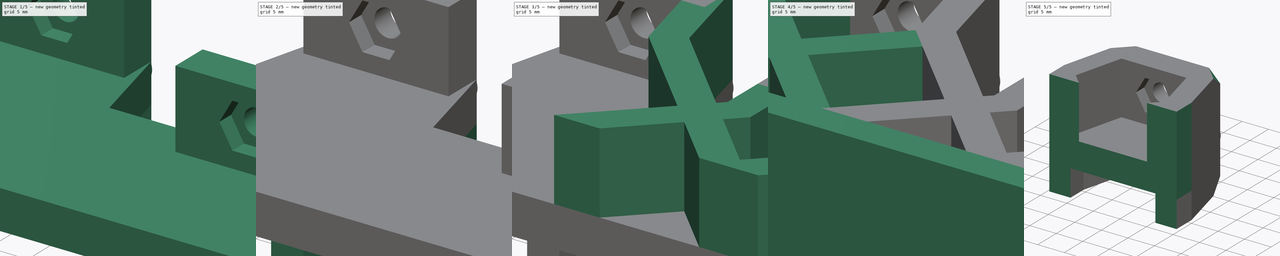
[diagram: build sequence overview — one tinted view per stage of 5, left to right]
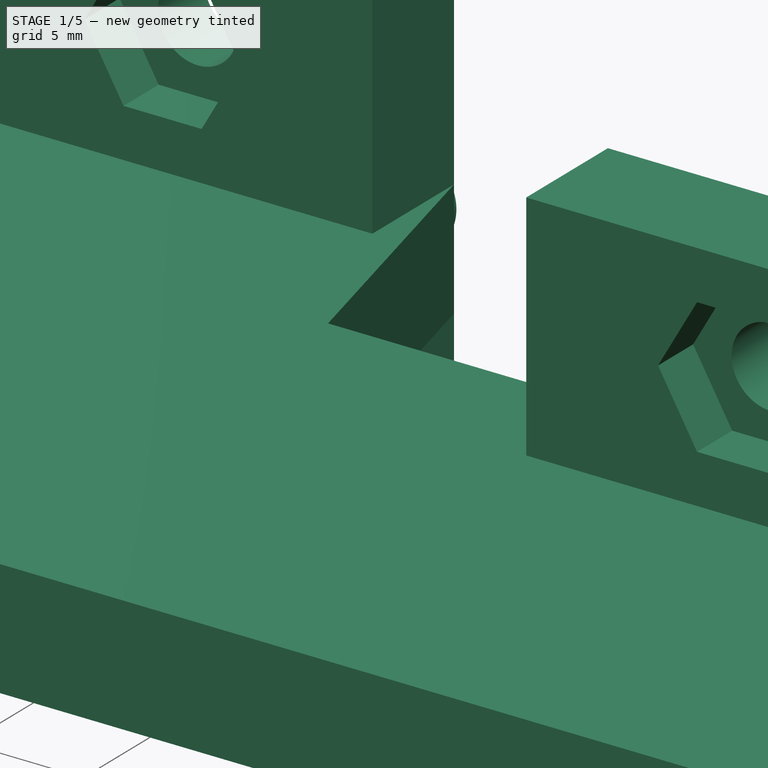
[diagram: stage 1 of 5 — iso view after this stage's code; geometry added in this stage tinted green]
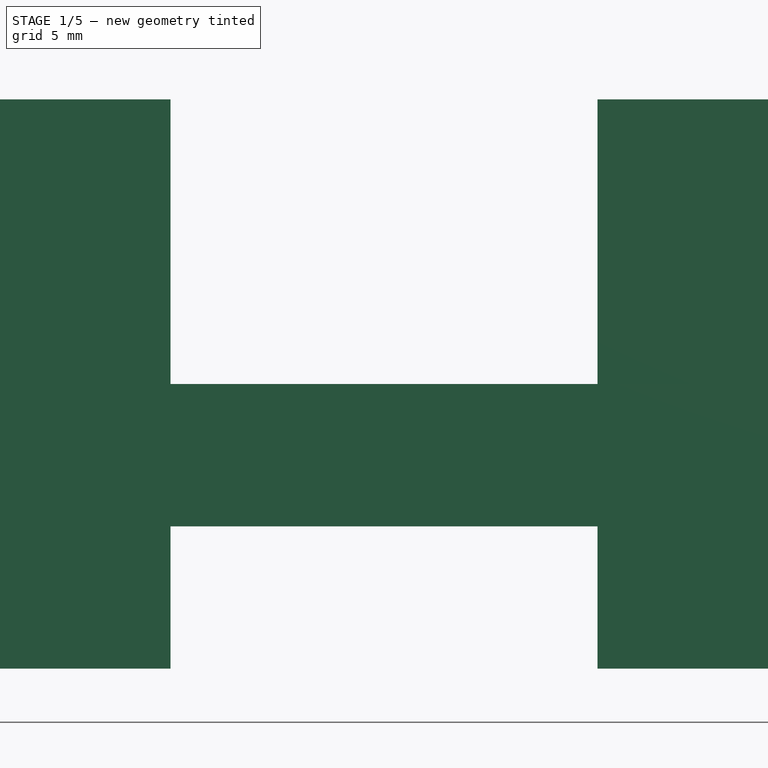
[diagram: stage 1 of 5 — front view after this stage's code; geometry added in this stage tinted green]
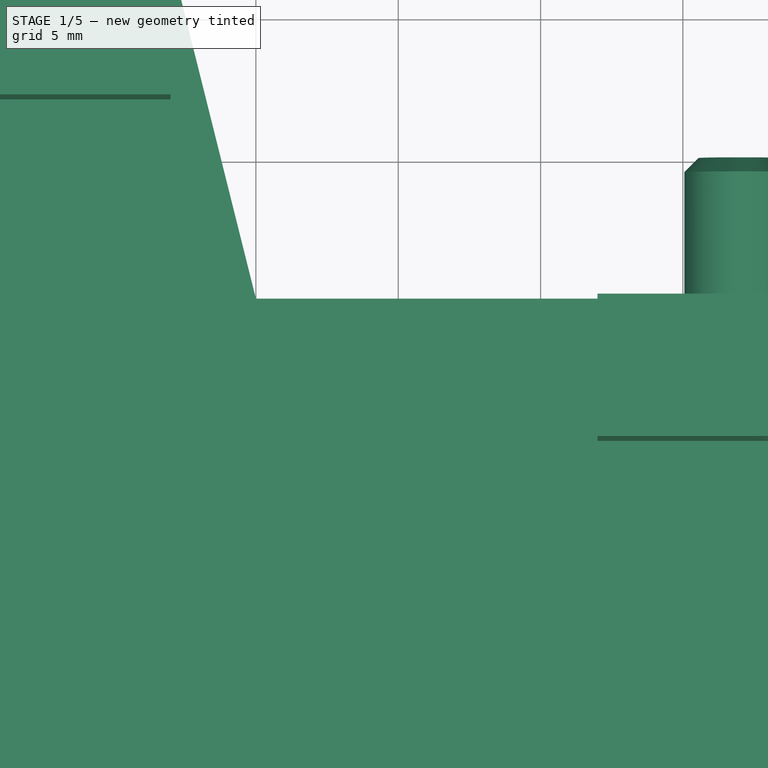
[diagram: stage 1 of 5 — top view after this stage's code; geometry added in this stage tinted green]
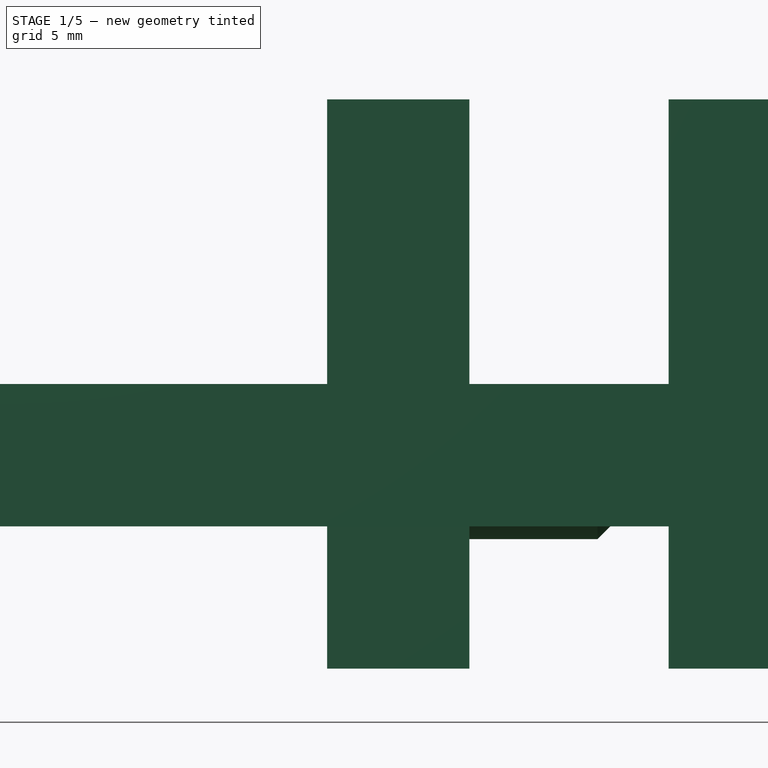
[diagram: stage 1 of 5 — right view after this stage's code; geometry added in this stage tinted green]
FCSTD DOCUMENT  (FreeCAD 0.19R)
Label: hori_stem_for_clamp_partial_test
License: All rights reserved
LicenseURL: http://en.wikipedia.org/wiki/All_rights_reserved
objects: Sketcher::SketchObject×18, PartDesign::Pad×14, PartDesign::LinearPattern×7, PartDesign::Mirrored×7, PartDesign::Plane×5, PartDesign::Pocket×4, PartDesign::Hole×2, PartDesign::Chamfer×2, PartDesign::MultiTransform×2, PartDesign::Fillet×2, PartDesign::Line×1, PartDesign::Body×1
note: 89 computed .brp shape members not serialized (recipe doc carries the construction recipe); baked Part::Feature solids carry a one-line shape summary decoded from their .brp

FEATURE [Sketcher::SketchObject] Sketch  label="bar_base_sk"
  FullyConstrained = true
  MapMode = 5
  Support = -> [XY_Plane]
  sketch-geometry (12):
    g0: LineSegment StartX=-9 StartY=-23 StartZ=0 EndX=108 EndY=-23 EndZ=0
    g1: LineSegment StartX=-9 StartY=0 StartZ=0 EndX=21 EndY=0 EndZ=0
    g2: LineSegment StartX=21 StartY=0 StartZ=0 EndX=24 EndY=12 EndZ=0
    g3: LineSegment StartX=24 StartY=12 StartZ=0 EndX=42 EndY=12 EndZ=0
    g4: LineSegment StartX=42 StartY=12 StartZ=0 EndX=45 EndY=0 EndZ=0
    g5: LineSegment StartX=45 StartY=0 StartZ=0 EndX=87 EndY=0 EndZ=0
    g6: LineSegment StartX=87 StartY=0 StartZ=0 EndX=90 EndY=12 EndZ=0
    g7: LineSegment StartX=90 StartY=12 StartZ=0 EndX=108 EndY=12 EndZ=0
    g8: LineSegment StartX=-9 StartY=0 StartZ=0 EndX=-9 EndY=-23 EndZ=0
    g9: LineSegment StartX=108 StartY=12 StartZ=0 EndX=108 EndY=-23 EndZ=0
    g10: GeomPoint X=9 Y=0 Z=0
    g11: LineSegment StartX=-9 StartY=0 StartZ=0 EndX=9 EndY=0 EndZ=0
  constraints (33):
    c: Horizontal(g0)
    c: PointOnObject(g1,g-1)
    c: Coincident(g1,g2)
    c: Coincident(g2,g3)
    c: Horizontal(g3)
    c: Coincident(g3,g4)
    c: PointOnObject(g4,g-1)
    c: Coincident(g4,g5)
    c: PointOnObject(g5,g-1)
    c: Coincident(g5,g6)
    c: Coincident(g6,g7)
    c: Horizontal(g7)
    c: Coincident(g8,g1)
    c: Coincident(g8,g0)
    c: Vertical(g8)
    c: Coincident(g9,g7)
    c: Coincident(g9,g0)
    c: Vertical(g9)
    c: DistanceY(g2,g2) = 12
    c: Horizontal(g3,g6)
    c: DistanceX(g3,g3) = 18
    c: DistanceX(g3,g7) = 66
    c: Equal(g7,g3)
    c: PointOnObject(g10,g1)
    c: Coincident(g11,g1)
    c: Coincident(g11,g10)
    c: Equal(g11,g3)
    c: Symmetric(g10,g1,g-2)
    c: DistanceX(g10,g3) = 33
    c: DistanceX(g1,g4) = 24
    c: Equal(g2,g4)
    c: Parallel(g6,g2)
    c: DistanceY(g9,g9) = 35
FEATURE [PartDesign::Pad] Pad  label="bar_base"
  Direction = (1,1,1)
  Length = 5
  Length2 = 100
  Profile = -> Sketch
  Type = 0
FEATURE [PartDesign::Line] DatumLine  label="connector_movement_vector"
  AttacherType = Attacher::AttachEngineLine
  Length = 20
  MapMode = 29
  Placement = pos=(-1.05109,2.89051,0) rot=(0.710454,-0.497622,-0.497622;1.90618rad)
  ResizeMode = 0
  Support = -> [Pad]
FEATURE [Sketcher::SketchObject] Sketch001  label="connector_base_sk"
  ExternalGeometry = -> [Pad]
  FullyConstrained = true
  MapMode = 5
  Placement = pos=(0,0,0) rot=(0,0.707107,0.707107;3.14159rad)
  Support = -> [Pad]
  sketch-geometry (8):
    g0: LineSegment StartX=-9 StartY=5 StartZ=0 EndX=9 EndY=5 EndZ=0
    g1: LineSegment StartX=9 StartY=5 StartZ=0 EndX=9 EndY=15 EndZ=0
    g2: LineSegment StartX=9 StartY=15 StartZ=0 EndX=-9 EndY=15 EndZ=0
    g3: LineSegment StartX=-9 StartY=15 StartZ=0 EndX=-9 EndY=5 EndZ=0
    g4: LineSegment StartX=-9 StartY=0 StartZ=0 EndX=9 EndY=0 EndZ=0
    g5: LineSegment StartX=9 StartY=0 StartZ=0 EndX=9 EndY=-5 EndZ=0
    g6: LineSegment StartX=9 StartY=-5 StartZ=0 EndX=-9 EndY=-5 EndZ=0
    g7: LineSegment StartX=-9 StartY=-5 StartZ=0 EndX=-9 EndY=0 EndZ=0
  constraints (23):
    c: Coincident(g0,g1)
    c: Coincident(g1,g2)
    c: Coincident(g2,g3)
    c: Coincident(g3,g0)
    c: Horizontal(g0)
    c: Vertical(g1)
    c: Vertical(g3)
    c: PointOnObject(g0,g-4)
    c: Symmetric(g2,g1,g-2)
    c: Equal(g2,g-3)
    c: DistanceY(g3,g3) = 10
    c: Coincident(g4,g5)
    c: Coincident(g5,g6)
    c: Coincident(g6,g7)
    c: Coincident(g7,g4)
    c: Horizontal(g4)
    c: Horizontal(g6)
    c: Vertical(g5)
    c: Vertical(g7)
    c: PointOnObject(g4,g-1)
    c: Vertical(g4,g0)
    c: Vertical(g4,g0)
    c: DistanceY(g7,g7) = 5
FEATURE [PartDesign::Pad] Pad001  label="connector_base"
  BaseFeature = -> Pad
  Direction = (1,1,1)
  Length = 5
  Length2 = 100
  Profile = -> Sketch001
  Reversed = true
  Type = 0
FEATURE [Sketcher::SketchObject] Sketch002  label="M3_hole_sk"
  ExternalGeometry = -> [Pad001]
  FullyConstrained = true
  MapMode = 5
  Placement = pos=(0,0,0) rot=(0,0.707107,0.707107;3.14159rad)
  Support = -> [Pad001]
  sketch-geometry (1):
    g0: Circle CenterX=0 CenterY=10 CenterZ=0 NormalX=0 NormalY=0 NormalZ=1 AngleXU=0 Radius=1
  constraints (3):
    c: PointOnObject(g0,g-2)
    c: Radius(g0) = 1
    c: Distance(g0,g-3) = 5
FEATURE [PartDesign::Hole] Hole  label="M3_hole"
  BaseFeature = -> Pad001
  Depth = 25
  DepthType = 1
  Diameter = 3.4
  DrillForDepth = false
  DrillPoint = 1
  DrillPointAngle = 118
  HoleCutCountersinkAngle = 90
  HoleCutCustomValues = false
  HoleCutDepth = 0
  HoleCutDiameter = 6.1
  HoleCutType = 0
  ModelActualThread = false
  Profile = -> Sketch002
  Tapered = false
  TaperedAngle = 90
  ThreadAngle = 0
  ThreadClass = 0
  ThreadCutOffInner = 0
  ThreadCutOffOuter = 0
  ThreadDirection = 0
  ThreadFit = 0
  ThreadPitch = 0
  ThreadSize = 9
  ThreadType = 1
  Threaded = false
FEATURE [Sketcher::SketchObject] Sketch003  label="M3_hex_sk"
  ExternalGeometry = -> [Hole]
  FullyConstrained = true
  MapMode = 5
  Placement = pos=(0,-5,1.1e-15) rot=(1,0,0;1.5708rad)
  Support = -> [Hole]
  sketch-geometry (7):
    g0: LineSegment StartX=3.34863 StartY=10 StartZ=0 EndX=1.67432 EndY=12.9 EndZ=0
    g1: LineSegment StartX=1.67432 StartY=12.9 StartZ=0 EndX=-1.67432 EndY=12.9 EndZ=0
    g2: LineSegment StartX=-1.67432 StartY=12.9 StartZ=0 EndX=-3.34863 EndY=10 EndZ=0
    g3: LineSegment StartX=-3.34863 StartY=10 StartZ=0 EndX=-1.67432 EndY=7.1 EndZ=0
    g4: LineSegment StartX=-1.67432 StartY=7.1 StartZ=0 EndX=1.67432 EndY=7.1 EndZ=0
    g5: LineSegment StartX=1.67432 StartY=7.1 StartZ=0 EndX=3.34863 EndY=10 EndZ=0
    g6: Circle CenterX=0 CenterY=10 CenterZ=0 NormalX=0 NormalY=0 NormalZ=1 AngleXU=0 Radius=3.34863
  constraints (16):
    c: Coincident(g0,g1)
    c: Coincident(g1,g2)
    c: Coincident(g2,g3)
    c: Coincident(g3,g4)
    c: Coincident(g4,g5)
    c: Coincident(g5,g0)
    c: Equal(g0, g1-g5) x5
    c: PointOnObject(g0,g6)
    c: PointOnObject(g1,g6)
    c: PointOnObject(g2,g6)
    c: PointOnObject(g3,g6)
    c: PointOnObject(g4,g6)
    c: PointOnObject(g5,g6)
    c: Coincident(g6,g-3)
    c: Horizontal(g6,g0)
    c: DistanceY(g3,g1) = 5.8
FEATURE [PartDesign::Pocket] Pocket  label="M3_hex"
  BaseFeature = -> Hole
  Length = 2.15
  Length2 = 100
  Profile = -> Sketch003
  Type = 0
FEATURE [Sketcher::SketchObject] Sketch004  label="dual_dowel_pin_sk"
  ExternalGeometry = -> [Pocket]
  FullyConstrained = true
  MapMode = 5
  Placement = pos=(0,0,0) rot=(0,0.707107,0.707107;3.14159rad)
  Support = -> [Pocket]
  sketch-geometry (2):
    g0: Circle CenterX=-4 CenterY=1.5 CenterZ=0 NormalX=0 NormalY=0 NormalZ=1 AngleXU=0 Radius=1.95
    g1: Circle CenterX=4 CenterY=1.5 CenterZ=0 NormalX=0 NormalY=0 NormalZ=1 AngleXU=0 Radius=1.95
  constraints (5):
    c: Symmetric(g1,g0,g-2)
    c: Equal(g1,g0)
    c: Radius(g0) = 1.95
    c: DistanceX(g0,g-1) = 4
    c: DistanceY(g0,g-3) = 8.5
FEATURE [PartDesign::Pad] Pad002  label="dual_dowel_pin"
  BaseFeature = -> Pocket
  Direction = (1,1,1)
  Length = 5
  Length2 = 100
  Profile = -> Sketch004
  Type = 0
FEATURE [PartDesign::Chamfer] Chamfer  label="dowel_pin_chamfer"
  Angle = 45
  Base = -> Pad002 [Edge52,Edge50]
  BaseFeature = -> Pad002
  ChamferType = 0
  FlipDirection = false
  Size = 0.5
  Size2 = 1
  SupportTransform = false
FEATURE [PartDesign::LinearPattern] LinearPattern
  Direction = -> DatumLine
  Length = 35.1141
  Occurrences = 2
  Reversed = true
  expr: Length = sqrt(33 ^ 2 + 12 ^ 2)
FEATURE [PartDesign::LinearPattern] LinearPattern001
  Direction = -> X_Axis
  Length = 66
  Occurrences = 2
FEATURE [PartDesign::MultiTransform] MultiTransform  label="quad_connector"
  BaseFeature = -> Chamfer
  Originals = -> [Pad001,Hole,Pocket,Pad002,Chamfer]
  Transformations = -> [LinearPattern,LinearPattern001]
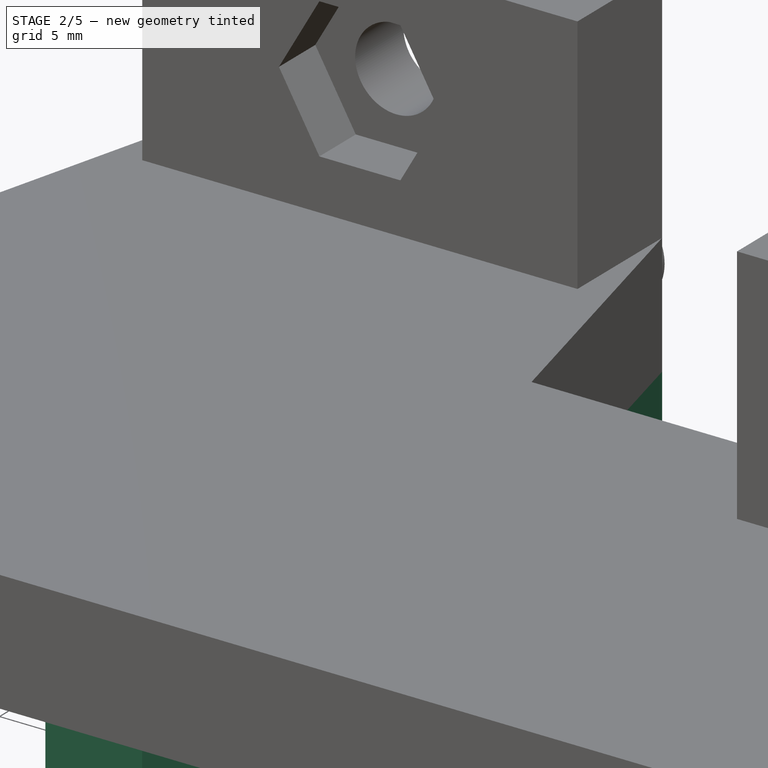
[diagram: stage 2 of 5 — iso view after this stage's code; geometry added in this stage tinted green]
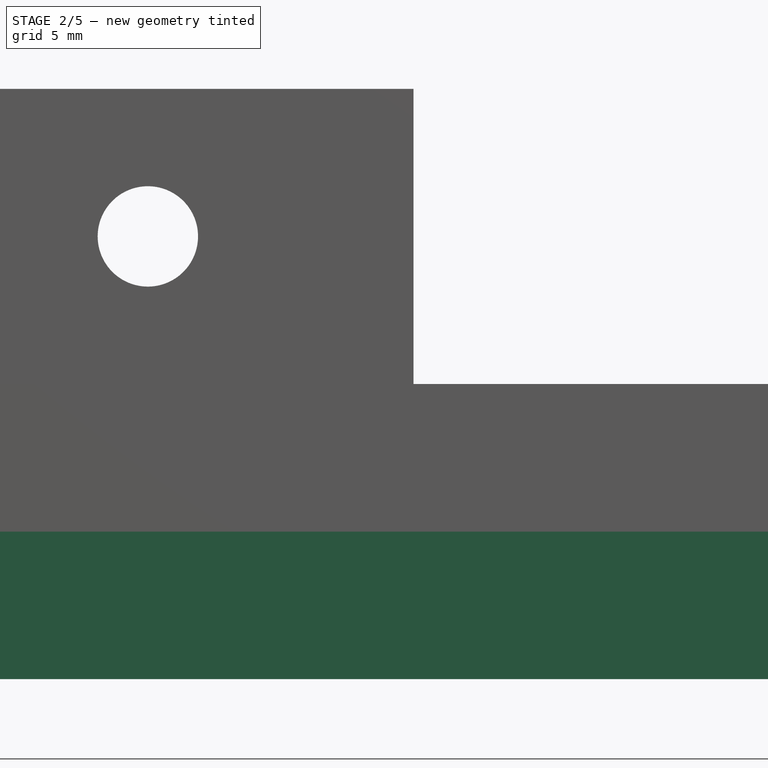
[diagram: stage 2 of 5 — front view after this stage's code; geometry added in this stage tinted green]
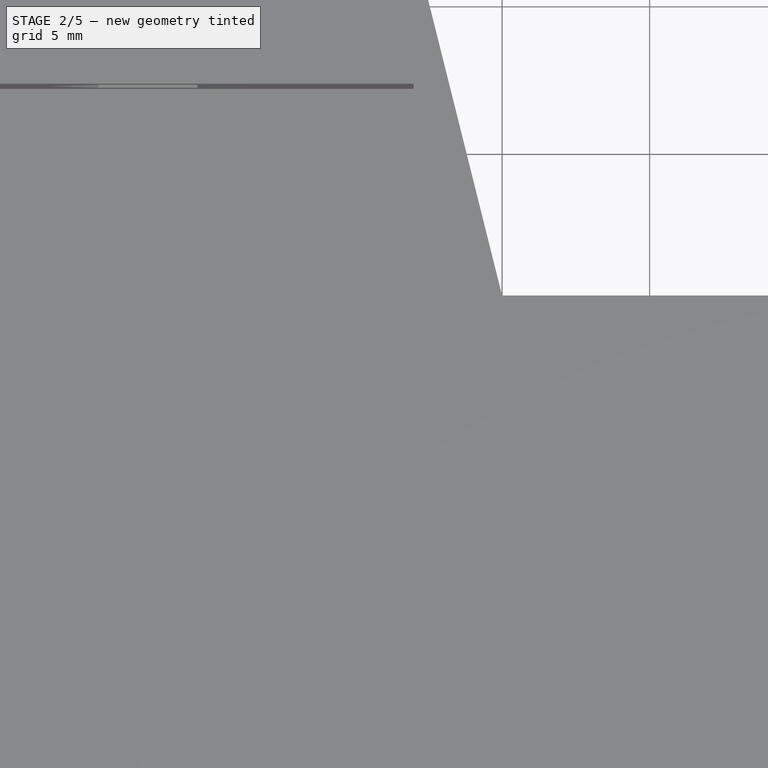
[diagram: stage 2 of 5 — top view after this stage's code; geometry added in this stage tinted green]
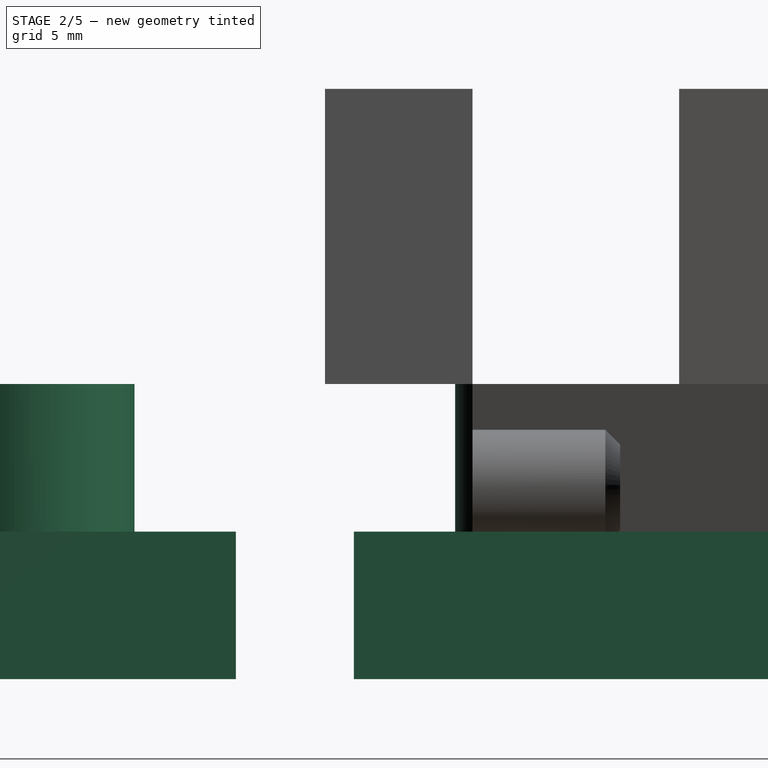
[diagram: stage 2 of 5 — right view after this stage's code; geometry added in this stage tinted green]
FEATURE [Sketcher::SketchObject] Sketch005  label="side_extender_sk"
  ExternalGeometry = -> [MultiTransform]
  FullyConstrained = true
  MapMode = 5
  Placement = pos=(0,0,5) rot=(0,0,1;0rad)
  Support = -> [MultiTransform]
  sketch-geometry (23):
    g0: LineSegment StartX=108 StartY=-23 StartZ=0 EndX=112 EndY=-23 EndZ=0
    g1: LineSegment StartX=112 StartY=-23 StartZ=0 EndX=128.079 EndY=-6.92102 EndZ=0
    g2: LineSegment StartX=128.079 StartY=-6.92102 StartZ=0 EndX=128.079 EndY=12 EndZ=0
    g3: LineSegment StartX=128.079 StartY=12 StartZ=0 EndX=108 EndY=12 EndZ=0
    g4: LineSegment StartX=108 StartY=12 StartZ=0 EndX=108 EndY=-23 EndZ=0
    g5: LineSegment StartX=-28.158 StartY=12 StartZ=0 EndX=-46.079 EndY=12 EndZ=0
    g6: LineSegment StartX=-46.079 StartY=12 StartZ=0 EndX=-46.079 EndY=-5.92102 EndZ=0
    g7: LineSegment StartX=-46.079 StartY=-5.92102 StartZ=0 EndX=-29 EndY=-23 EndZ=0
    g8: LineSegment StartX=-29 StartY=-23 StartZ=0 EndX=-9 EndY=-23 EndZ=0
    g9: LineSegment StartX=-9 StartY=-23 StartZ=0 EndX=-9 EndY=0 EndZ=0
    g10: Circle CenterX=101.079 CenterY=-15 CenterZ=0 NormalX=0 NormalY=0 NormalZ=1 AngleXU=0 Radius=5.5
    g11: LineSegment StartX=101.079 StartY=-15 StartZ=0 EndX=137 EndY=20.921 EndZ=0
    g12: GeomPoint X=99 Y=12 Z=0
    g13: Circle CenterX=119.039 CenterY=2.96051 CenterZ=0 NormalX=0 NormalY=0 NormalZ=1 AngleXU=0 Radius=5.5
    g14: LineSegment StartX=-55 StartY=20.921 StartZ=0 EndX=-19.079 EndY=-15 EndZ=0
    g15: Circle CenterX=-19.079 CenterY=-15 CenterZ=0 NormalX=0 NormalY=0 NormalZ=1 AngleXU=0 Radius=5.5
    g16: Circle CenterX=-37.0395 CenterY=2.96051 CenterZ=0 NormalX=0 NormalY=0 NormalZ=1 AngleXU=0 Radius=5.5
    g17: Circle CenterX=-37.0395 CenterY=2.96051 CenterZ=0 NormalX=0 NormalY=0 NormalZ=1 AngleXU=0 Radius=1
    g18: Circle CenterX=-19.079 CenterY=-15 CenterZ=0 NormalX=0 NormalY=0 NormalZ=1 AngleXU=0 Radius=1
    g19: Circle CenterX=119.039 CenterY=2.96051 CenterZ=0 NormalX=0 NormalY=0 NormalZ=1 AngleXU=0 Radius=1
    g20: Circle CenterX=101.079 CenterY=-15 CenterZ=0 NormalX=0 NormalY=0 NormalZ=1 AngleXU=0 Radius=1
    g21: LineSegment StartX=-9 StartY=0 StartZ=0 EndX=-16.158 EndY=0 EndZ=0
    g22: LineSegment StartX=-28.158 StartY=12 StartZ=0 EndX=-16.158 EndY=0 EndZ=0
  constraints (57):
    c: Coincident(g-3,g0)
    c: Horizontal(g0)
    c: Coincident(g0,g1)
    c: Coincident(g1,g2)
    c: Vertical(g2)
    c: Coincident(g3,g-4)
    c: Horizontal(g3)
    c: Coincident(g3,g4)
    c: Coincident(g4,g0)
    c: Coincident(g6,g7)
    c: Coincident(g7,g8)
    c: Coincident(g8,g-5)
    c: Horizontal(g8)
    c: Coincident(g8,g9)
    c: Coincident(g11,g10)
    c: Radius(g10) = 5.5
    c: Distance(g11) = 50.8
    c: Angle(g-1,g11) = 0.785398
    c: Symmetric(g-7,g3,g12)
    c: DistanceY(g10,g12) = 27
    c: DistanceX(g12,g11) = 38
    c: Symmetric(g10,g11,g13)
    c: Equal(g13,g10)
    c: Parallel(g1,g11)
    c: Horizontal(g14,g11)
    c: Angle(g-1,g14) = 2.35619
    c: Equal(g11,g14)
    c: DistanceX(g14,g-1) = 55
    c: Parallel(g7,g14)
    c: Coincident(g15,g14)
    c: Equal(g15,g10)
    c: Symmetric(g14,g14,g16)
    c: Equal(g16,g15)
    c: Horizontal(g5,g-7)
    c: Coincident(g5,g6)
    c: Horizontal(g5)
    c: Vertical(g6)
    c: PointOnObject(g5,g14)
    c: Coincident(g3,g2)
    c: PointOnObject(g2,g11)
    c: DistanceX(g0,g0) = 4
    c: DistanceX(g8,g8) = 20
    c: Coincident(g17,g16)
    c: Radius(g17) = 1
    c: Coincident(g18,g14)
    c: Radius(g18) = 1
    c: Coincident(g19,g13)
    c: Radius(g19) = 1
    c: Coincident(g20,g10)
    c: Radius(g20) = 1
    c: Coincident(g21,g9)
    c: Horizontal(g21)
    c: Coincident(g9,g-6)
    c: Coincident(g22,g5)
    c: Coincident(g22,g21)
    c: Parallel(g22,g14)
    c: Equal(g5,g6)
FEATURE [PartDesign::Pad] Pad003  label="side_extender"
  BaseFeature = -> MultiTransform
  Direction = (1,1,1)
  Length = 5
  Length2 = 100
  Profile = -> Sketch005
  Reversed = true
  Type = 0
FEATURE [PartDesign::Hole] Hole001  label="quad_1on4_holes"
  BaseFeature = -> Pad003
  Depth = 25
  DepthType = 1
  Diameter = 7.1
  DrillForDepth = false
  DrillPoint = 1
  DrillPointAngle = 118
  HoleCutCountersinkAngle = 90
  HoleCutCustomValues = false
  HoleCutDepth = 0
  HoleCutDiameter = 6.1
  HoleCutType = 0
  ModelActualThread = false
  Profile = -> Pad003 [Edge152,Edge151,Edge62,Edge168]
  Tapered = false
  TaperedAngle = 90
  ThreadAngle = 0
  ThreadClass = 0
  ThreadCutOffInner = 0
  ThreadCutOffOuter = 0
  ThreadDirection = 0
  ThreadFit = 0
  ThreadPitch = 0
  ThreadSize = 10
  ThreadType = 4
  Threaded = false
FEATURE [Sketcher::SketchObject] Sketch006  label="bot_inter_stiffener_sk"
  ExternalGeometry = -> [Hole001]
  FullyConstrained = true
  MapMode = 5
  Placement = pos=(0,0,0) rot=(1,0,0;3.14159rad)
  Support = -> [Hole001]
  sketch-geometry (31):
    g0: Circle CenterX=-37.0395 CenterY=-2.96051 CenterZ=0 NormalX=0 NormalY=0 NormalZ=1 AngleXU=0 Radius=5.5
    g1: Circle CenterX=-19.079 CenterY=15 CenterZ=0 NormalX=0 NormalY=0 NormalZ=1 AngleXU=0 Radius=5.5
    g2: Circle CenterX=101.079 CenterY=15 CenterZ=0 NormalX=0 NormalY=0 NormalZ=1 AngleXU=0 Radius=5.5
    g3: Circle CenterX=119.039 CenterY=-2.96051 CenterZ=0 NormalX=0 NormalY=0 NormalZ=1 AngleXU=0 Radius=5.5
    g4: GeomPoint X=110.059 Y=6.01974 Z=0
    g5: GeomPoint X=-28.0592 Y=6.01974 Z=0
    g6: LineSegment StartX=-46.079 StartY=4.01974 StartZ=0 EndX=-30.0592 EndY=4.01974 EndZ=0
    g7: LineSegment StartX=126.98 StartY=8.01974 StartZ=0 EndX=112.059 EndY=8.01974 EndZ=0
    g8: LineSegment StartX=108.059 StartY=23 StartZ=0 EndX=108.059 EndY=8.01974 EndZ=0
    g9: LineSegment StartX=112.059 StartY=22.9408 StartZ=0 EndX=112.059 EndY=8.01974 EndZ=0
    g10: LineSegment StartX=108.059 StartY=23 StartZ=0 EndX=112 EndY=23 EndZ=0
    g11: LineSegment StartX=112 StartY=23 StartZ=0 EndX=112.059 EndY=22.9408 EndZ=0
    g12: LineSegment StartX=112.059 StartY=-12 StartZ=0 EndX=108.059 EndY=-12 EndZ=0
    g13: LineSegment StartX=-26.0592 StartY=-9.90128 StartZ=0 EndX=-26.0592 EndY=4.01974 EndZ=0
    g14: LineSegment StartX=-30.0592 StartY=21.9408 StartZ=0 EndX=-30.0592 EndY=8.01974 EndZ=0
    g15: LineSegment StartX=-30.0592 StartY=21.9408 StartZ=0 EndX=-29 EndY=23 EndZ=0
    g16: LineSegment StartX=-29 StartY=23 StartZ=0 EndX=-26.0592 EndY=23 EndZ=0
    g17: LineSegment StartX=-46.079 StartY=4.01974 StartZ=0 EndX=-46.079 EndY=5.92102 EndZ=0
    g18: LineSegment StartX=-46.079 StartY=5.92102 StartZ=0 EndX=-43.9803 EndY=8.01974 EndZ=0
    g19: LineSegment StartX=-30.0592 StartY=-12 StartZ=0 EndX=-28.158 EndY=-12 EndZ=0
    g20: LineSegment StartX=-28.158 StartY=-12 StartZ=0 EndX=-26.0592 EndY=-9.90128 EndZ=0
    g21: LineSegment StartX=-26.0592 StartY=8.01974 StartZ=0 EndX=-26.0592 EndY=23 EndZ=0
    g22: LineSegment StartX=-30.0592 StartY=4.01974 StartZ=0 EndX=-30.0592 EndY=-12 EndZ=0
    g23: LineSegment StartX=-26.0592 StartY=4.01974 StartZ=0 EndX=108.059 EndY=4.01974 EndZ=0
    g24: LineSegment StartX=-30.0592 StartY=8.01974 StartZ=0 EndX=-43.9803 EndY=8.01974 EndZ=0
    g25: LineSegment StartX=112.059 StartY=4.01974 StartZ=0 EndX=112.059 EndY=-12 EndZ=0
    g26: LineSegment StartX=112.059 StartY=4.01974 StartZ=0 EndX=128.079 EndY=4.01974 EndZ=0
    g27: LineSegment StartX=108.059 StartY=4.01974 StartZ=0 EndX=108.059 EndY=-12 EndZ=0
    g28: LineSegment StartX=108.059 StartY=8.01974 StartZ=0 EndX=-26.0592 EndY=8.01974 EndZ=0
    g29: LineSegment StartX=126.98 StartY=8.01974 StartZ=0 EndX=128.079 EndY=6.92102 EndZ=0
    g30: LineSegment StartX=128.079 StartY=6.92102 StartZ=0 EndX=128.079 EndY=4.01974 EndZ=0
  constraints (72):
    c: Coincident(g0,g-6)
    c: Coincident(g1,g-3)
    c: Coincident(g2,g-4)
    c: Coincident(g3,g-5)
    c: Equal(g0,g1)
    c: Equal(g1,g2)
    c: Equal(g2,g3)
    c: Radius(g0) = 5.5
    c: Symmetric(g2,g3,g4)
    c: Symmetric(g0,g1,g5)
    c: PointOnObject(g6,g-8)
    c: PointOnObject(g26,g-12)
    c: Horizontal(g6)
    c: PointOnObject(g7,g-11)
    c: PointOnObject(g24,g-7)
    c: Horizontal(g7)
    c: Distance(g4,g6) = 2
    c: Distance(g4,g7) = 2
    c: PointOnObject(g8,g-10)
    c: PointOnObject(g27,g-13)
    c: Vertical(g8)
    c: PointOnObject(g9,g-11)
    c: PointOnObject(g25,g-13)
    c: Vertical(g9)
    c: Distance(g4,g9) = 2
    c: Distance(g4,g8) = 2
    c: Coincident(g10,g8)
    c: Coincident(g10,g-11)
    c: Coincident(g11,g10)
    c: Coincident(g11,g9)
    c: Coincident(g12,g25)
    c: Coincident(g12,g27)
    c: PointOnObject(g13,g-14)
    c: PointOnObject(g21,g-9)
    c: Vertical(g13)
    c: PointOnObject(g14,g-7)
    c: PointOnObject(g22,g-15)
    c: Vertical(g14)
    c: Distance(g5,g13) = 2
    c: Distance(g5,g14) = 2
    c: Coincident(g15,g14)
    c: Coincident(g15,g-9)
    c: Coincident(g16,g15)
    c: Coincident(g16,g21)
    c: Coincident(g17,g6)
    c: Coincident(g17,g-8)
    c: Coincident(g18,g17)
    c: Coincident(g18,g24)
    c: Coincident(g19,g22)
    c: Coincident(g19,g-15)
    c: Coincident(g20,g19)
    c: Coincident(g20,g13)
    c: Tangent(g13,g21)
    c: Tangent(g14,g22)
    c: Coincident(g6,g22)
    c: Coincident(g23,g13)
    c: Tangent(g6,g23)
    c: Coincident(g28,g21)
    c: Coincident(g24,g14)
    c: Tangent(g7,g24)
    c: Tangent(g9,g25)
    c: Coincident(g26,g25)
    c: Tangent(g23,g26)
    c: Coincident(g27,g23)
    c: Tangent(g8,g27)
    c: Coincident(g7,g9)
    c: Coincident(g28,g8)
    c: Tangent(g7,g28)
    c: Coincident(g29,g7)
    c: Coincident(g29,g-12)
    c: Coincident(g30,g29)
    c: Coincident(g30,g26)
FEATURE [PartDesign::Pad] Pad004  label="bot_inter_stiffener"
  BaseFeature = -> Hole001
  Direction = (1,1,1)
  Length = 10
  Length2 = 100
  Profile = -> Sketch006
  Type = 3
  UpToFace = -> Hole001 [Face13]
FEATURE [PartDesign::Plane] DatumPlane  label="connector_datum_plane_2"
  Length = 60
  MapMode = 45
  Placement = pos=(33,12,15) rot=(0.57735,0.57735,0.57735;2.0944rad)
  ResizeMode = 0
  Support = -> [Pad004]
  Width = 60
FEATURE [PartDesign::Plane] DatumPlane001  label="connector_datum_plane_3"
  Length = 60
  MapMode = 45
  Placement = pos=(66,0,15) rot=(0.57735,0.57735,0.57735;2.0944rad)
  ResizeMode = 0
  Support = -> [Pad004]
  Width = 60
FEATURE [Sketcher::SketchObject] Sketch007  label="front_connector_stiffener_sk"
  ExternalGeometry = -> [Pad004]
  FullyConstrained = true
  MapMode = 5
  Placement = pos=(0,0,0) rot=(1,0,0;3.14159rad)
  Support = -> [Pad004]
  sketch-geometry (6):
    g0: LineSegment StartX=25 StartY=0.492423 StartZ=0 EndX=25 EndY=23 EndZ=0
    g1: LineSegment StartX=25 StartY=23 StartZ=0 EndX=21 EndY=23 EndZ=0
    g2: LineSegment StartX=25 StartY=0.492423 StartZ=0 EndX=28.1231 EndY=-12 EndZ=0
    g3: LineSegment StartX=28.1231 StartY=-12 StartZ=0 EndX=24 EndY=-12 EndZ=0
    g4: LineSegment StartX=21 StartY=23 StartZ=0 EndX=21 EndY=0 EndZ=0
    g5: LineSegment StartX=21 StartY=0 StartZ=0 EndX=24 EndY=-12 EndZ=0
  constraints (16):
    c: PointOnObject(g0,g-3)
    c: Vertical(g0)
    c: Coincident(g1,g0)
    c: PointOnObject(g1,g-3)
    c: Distance(g1) = 4
    c: Coincident(g2,g0)
    c: PointOnObject(g2,g-4)
    c: Coincident(g3,g2)
    c: Coincident(g3,g-5)
    c: Coincident(g4,g1)
    c: Coincident(g4,g-5)
    c: Vertical(g4)
    c: Coincident(g5,g4)
    c: Coincident(g5,g3)
    c: Parallel(g2,g5)
    c: Distance(g0,g5) = 4
FEATURE [PartDesign::Pad] Pad005  label="bot_front_connector_stiffener"
  BaseFeature = -> Pad004
  Direction = (1,1,1)
  Length = 10
  Length2 = 100
  Profile = -> Sketch007
  Type = 3
  UpToFace = -> Pad004 [Face47]
FEATURE [PartDesign::Mirrored] Mirrored  label="bot_front_connector_stiffener_1"
  BaseFeature = -> Pad005
  MirrorPlane = -> DatumPlane
  Originals = -> [Pad005]
FEATURE [PartDesign::LinearPattern] LinearPattern002  label="bot_front_connector_stiffener_2"
  BaseFeature = -> Mirrored
  Direction = -> Sketch007 [H_Axis]
  Length = 66
  Occurrences = 2
  Originals = -> [Pad005]
FEATURE [Sketcher::SketchObject] Sketch008  label="bot_back_connector_stiffener_sk"
  ExternalGeometry = -> [LinearPattern002]
  FullyConstrained = true
  MapMode = 5
  Placement = pos=(0,0,0) rot=(1,0,0;3.14159rad)
  Support = -> [LinearPattern002]
  sketch-geometry (4):
    g0: LineSegment StartX=71 StartY=23 StartZ=0 EndX=75 EndY=23 EndZ=0
    g1: LineSegment StartX=75 StartY=23 StartZ=0 EndX=75 EndY=8.01974 EndZ=0
    g2: LineSegment StartX=75 StartY=8.01974 StartZ=0 EndX=71 EndY=8.01974 EndZ=0
    g3: LineSegment StartX=71 StartY=8.01974 StartZ=0 EndX=71 EndY=23 EndZ=0
  constraints (12):
    c: Coincident(g0,g1)
    c: Coincident(g1,g2)
    c: Coincident(g2,g3)
    c: Coincident(g3,g0)
    c: Horizontal(g0)
    c: Horizontal(g2)
    c: Vertical(g1)
    c: Vertical(g3)
    c: PointOnObject(g0,g-6)
    c: PointOnObject(g1,g-7)
    c: Vertical(g-8,g1)
    c: DistanceX(g0,g0) = 4
FEATURE [PartDesign::Pad] Pad006  label="bot_back_connector_stiffener"
  BaseFeature = -> LinearPattern002
  Direction = (1,1,1)
  Length = 10
  Length2 = 100
  Profile = -> Sketch008
  Type = 3
  UpToFace = -> LinearPattern002 [Face163]
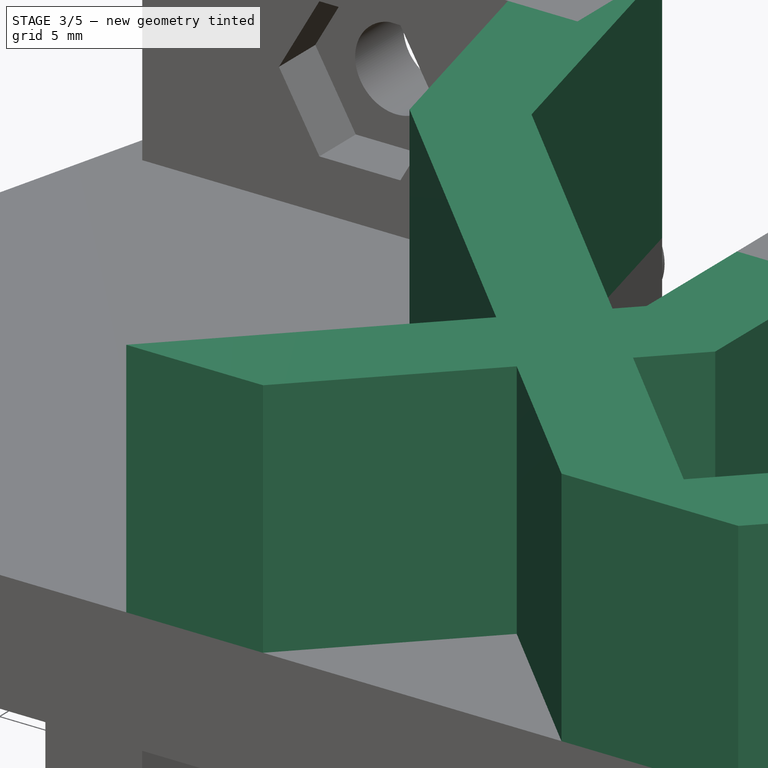
[diagram: stage 3 of 5 — iso view after this stage's code; geometry added in this stage tinted green]
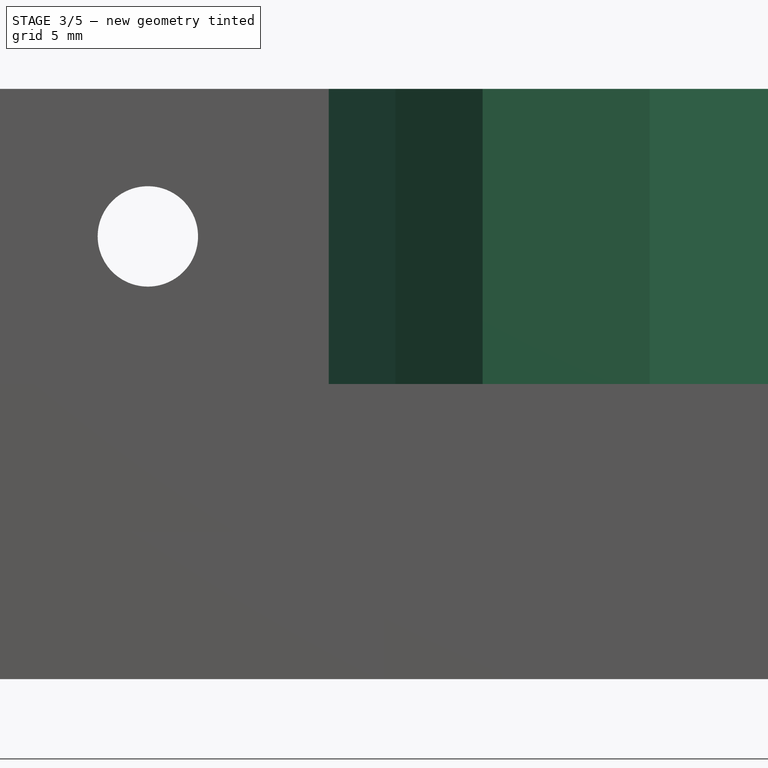
[diagram: stage 3 of 5 — front view after this stage's code; geometry added in this stage tinted green]
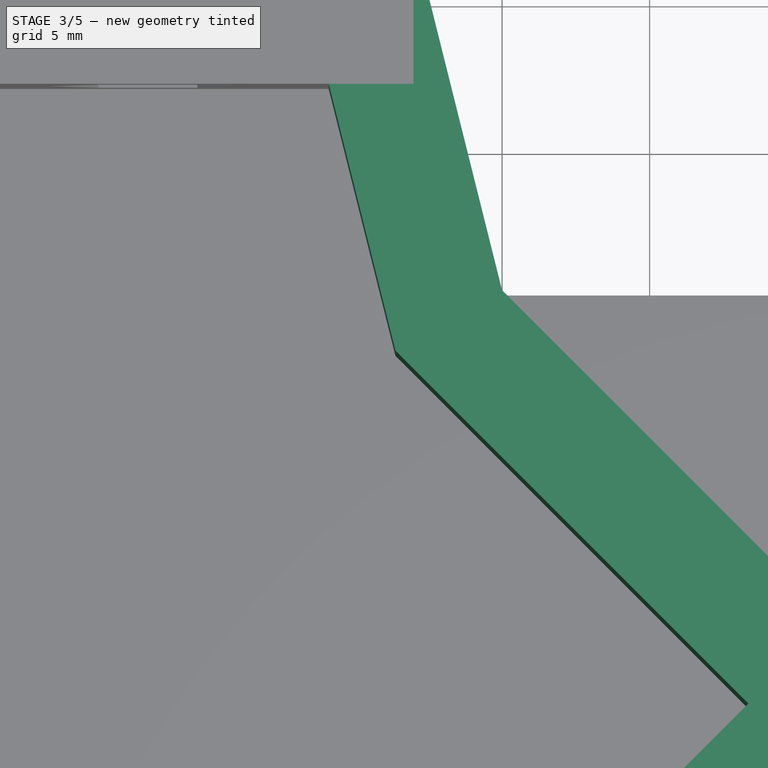
[diagram: stage 3 of 5 — top view after this stage's code; geometry added in this stage tinted green]
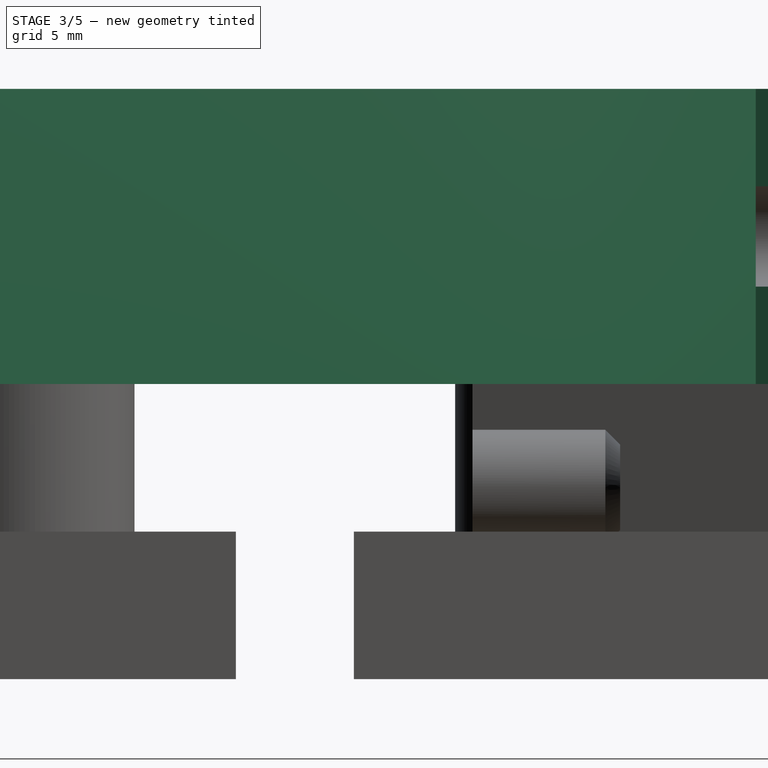
[diagram: stage 3 of 5 — right view after this stage's code; geometry added in this stage tinted green]
FEATURE [PartDesign::Mirrored] Mirrored001  label="bot_back_connector_stiffener_1"
  BaseFeature = -> Pad006
  MirrorPlane = -> DatumPlane001
  Originals = -> [Pad006]
FEATURE [PartDesign::LinearPattern] LinearPattern003  label="bot_back_connector_stiffener_2"
  BaseFeature = -> Mirrored001
  Direction = -> Sketch008 [H_Axis]
  Length = 66
  Occurrences = 2
  Originals = -> [Pad006]
  Reversed = true
FEATURE [Sketcher::SketchObject] Sketch009  label="bot_extra_stiffener_sk"
  ExternalGeometry = -> [LinearPattern003]
  FullyConstrained = true
  MapMode = 5
  Placement = pos=(0,0,0) rot=(1,0,0;3.14159rad)
  Support = -> [LinearPattern003]
  sketch-geometry (8):
    g0: LineSegment StartX=-5 StartY=8.01974 StartZ=0 EndX=-9 EndY=8.01974 EndZ=0
    g1: LineSegment StartX=-9 StartY=8.01974 StartZ=0 EndX=-9 EndY=23 EndZ=0
    g2: LineSegment StartX=-9 StartY=23 StartZ=0 EndX=-5 EndY=23 EndZ=0
    g3: LineSegment StartX=-5 StartY=23 StartZ=0 EndX=-5 EndY=8.01974 EndZ=0
    g4: LineSegment StartX=108 StartY=-7 StartZ=0 EndX=108.059 EndY=-7 EndZ=0
    g5: LineSegment StartX=108.059 StartY=-7 StartZ=0 EndX=108.059 EndY=-12 EndZ=0
    g6: LineSegment StartX=108.059 StartY=-12 StartZ=0 EndX=108 EndY=-12 EndZ=0
    g7: LineSegment StartX=108 StartY=-12 StartZ=0 EndX=108 EndY=-7 EndZ=0
  constraints (22):
    c: Coincident(g0,g1)
    c: Coincident(g1,g2)
    c: Coincident(g2,g3)
    c: Coincident(g3,g0)
    c: Horizontal(g0)
    c: Horizontal(g2)
    c: Vertical(g1)
    c: Vertical(g3)
    c: PointOnObject(g0,g-6)
    c: PointOnObject(g1,g-7)
    c: Vertical(g-8,g0)
    c: DistanceX(g2,g2) = 4
    c: Coincident(g4,g5)
    c: Coincident(g5,g6)
    c: Coincident(g6,g7)
    c: Coincident(g7,g4)
    c: Horizontal(g4)
    c: Horizontal(g6)
    c: Vertical(g5)
    c: Vertical(g7)
    c: Coincident(g4,g-10)
    c: Coincident(g5,g-9)
FEATURE [PartDesign::Pad] Pad007  label="bot_extra_stiffener"
  BaseFeature = -> LinearPattern003
  Direction = (1,1,1)
  Length = 10
  Length2 = 100
  Profile = -> Sketch009
  Type = 3
  UpToFace = -> LinearPattern003 [Face13]
FEATURE [Sketcher::SketchObject] Sketch010  label="top_side_stiffener_sk"
  ExternalGeometry = -> [Pad007]
  FullyConstrained = true
  MapMode = 5
  Placement = pos=(0,0,5) rot=(0,0,1;0rad)
  Support = -> [Pad007]
  sketch-geometry (22):
    g0: LineSegment StartX=-46.079 StartY=-5.92102 StartZ=0 EndX=-29 EndY=-23 EndZ=0
    g1: LineSegment StartX=-46.079 StartY=-5.92102 StartZ=0 EndX=-46.079 EndY=1.15004 EndZ=0
    g2: LineSegment StartX=-46.079 StartY=1.15004 StartZ=0 EndX=-21.9289 EndY=-23 EndZ=0
    g3: LineSegment StartX=-21.9289 StartY=-23 StartZ=0 EndX=-29 EndY=-23 EndZ=0
    g4: LineSegment StartX=-33.8148 StartY=12 StartZ=0 EndX=-28.158 EndY=12 EndZ=0
    g5: LineSegment StartX=-28.158 StartY=12 StartZ=0 EndX=6.84205 EndY=-23 EndZ=0
    g6: LineSegment StartX=-33.8148 StartY=12 StartZ=0 EndX=1.18519 EndY=-23 EndZ=0
    g7: LineSegment StartX=1.18519 StartY=-23 StartZ=0 EndX=6.84205 EndY=-23 EndZ=0
    g8: Circle CenterX=-37.0395 CenterY=2.96051 CenterZ=0 NormalX=0 NormalY=0 NormalZ=1 AngleXU=0 Radius=6.1
    g9: Circle CenterX=-19.079 CenterY=-15 CenterZ=0 NormalX=0 NormalY=0 NormalZ=1 AngleXU=0 Radius=6.1
    g10: Circle CenterX=119.039 CenterY=2.96051 CenterZ=0 NormalX=0 NormalY=0 NormalZ=1 AngleXU=0 Radius=6.1
    g11: Circle CenterX=101.079 CenterY=-15 CenterZ=0 NormalX=0 NormalY=0 NormalZ=1 AngleXU=0 Radius=6.1
    g12: LineSegment StartX=128.079 StartY=-6.92102 StartZ=0 EndX=112 EndY=-23 EndZ=0
    g13: LineSegment StartX=112 StartY=-23 StartZ=0 EndX=104.929 EndY=-23 EndZ=0
    g14: LineSegment StartX=104.929 StartY=-23 StartZ=0 EndX=128.079 EndY=0.150043 EndZ=0
    g15: LineSegment StartX=128.079 StartY=0.150043 StartZ=0 EndX=128.079 EndY=-6.92102 EndZ=0
    g16: LineSegment StartX=76.3431 StartY=-23 StartZ=0 EndX=82 EndY=-23 EndZ=0
    g17: LineSegment StartX=82 StartY=-23 StartZ=0 EndX=117 EndY=12 EndZ=0
    g18: LineSegment StartX=76.3431 StartY=-23 StartZ=0 EndX=106.343 EndY=7 EndZ=0
    g19: LineSegment StartX=106.343 StartY=7 StartZ=0 EndX=108 EndY=7 EndZ=0
    g20: LineSegment StartX=108 StartY=7 StartZ=0 EndX=108 EndY=12 EndZ=0
    g21: LineSegment StartX=108 StartY=12 StartZ=0 EndX=117 EndY=12 EndZ=0
  constraints (55):
    c: Coincident(g0,g-9)
    c: Coincident(g0,g-7)
    c: Coincident(g1,g0)
    c: PointOnObject(g1,g-9)
    c: Coincident(g2,g1)
    c: PointOnObject(g2,g-12)
    c: Coincident(g3,g2)
    c: Coincident(g3,g0)
    c: Parallel(g2,g0)
    c: Distance(g0,g2) = 5
    c: PointOnObject(g4,g-10)
    c: Coincident(g4,g-10)
    c: Coincident(g5,g4)
    c: PointOnObject(g5,g-13)
    c: PointOnObject(g5,g-8)
    c: Coincident(g6,g4)
    c: PointOnObject(g6,g-13)
    c: Coincident(g7,g6)
    c: Coincident(g7,g5)
    c: Parallel(g6,g5)
    c: Distance(g4,g5) = 4
    c: Coincident(g8,g-6)
    c: Radius(g8) = 6.1
    c: Coincident(g9,g-5)
    c: Coincident(g10,g-3)
    c: Coincident(g11,g-4)
    c: Equal(g11,g10)
    c: Equal(g10,g9)
    c: Equal(g9,g8)
    c: Coincident(g12,g-14)
    c: Coincident(g12,g-15)
    c: Coincident(g13,g12)
    c: PointOnObject(g13,g-15)
    c: Coincident(g14,g13)
    c: PointOnObject(g14,g-14)
    c: Coincident(g15,g14)
    c: Coincident(g15,g12)
    c: Distance(g12,g14) = 5
    c: Parallel(g14,g12)
    c: PointOnObject(g16,g-13)
    c: PointOnObject(g16,g-13)
    c: Coincident(g17,g16)
    c: PointOnObject(g17,g-16)
    c: Parallel(g17,g12)
    c: Coincident(g18,g16)
    c: Parallel(g18,g17)
    c: Distance(g18,g17) = 4
    c: PointOnObject(g18,g-18)
    c: Coincident(g19,g18)
    c: Coincident(g19,g-18)
    c: Coincident(g20,g19)
    c: Coincident(g20,g-17)
    c: Coincident(g21,g20)
    c: Coincident(g21,g17)
    c: DistanceX(g21,g21) = 9
FEATURE [PartDesign::Pad] Pad008  label="top_side_stiffener"
  BaseFeature = -> Pad007
  Direction = (1,1,1)
  Length = 10
  Length2 = 100
  Profile = -> Sketch010
  Type = 3
  UpToFace = -> Pad007 [Face38]
FEATURE [Sketcher::SketchObject] Sketch011  label="top_cross_stiffener_sk"
  ExternalGeometry = -> [Pad008]
  FullyConstrained = true
  MapMode = 5
  Placement = pos=(0,0,5) rot=(0,0,1;0rad)
  Support = -> [Pad008]
  sketch-geometry (17):
    g0: LineSegment StartX=101.079 StartY=-15 StartZ=0 EndX=119.039 EndY=2.96051 EndZ=0
    g1: LineSegment StartX=87 StartY=0 StartZ=0 EndX=75.8284 EndY=-11.1716 EndZ=0
    g2: LineSegment StartX=64 StartY=-23 StartZ=0 EndX=69.6569 EndY=-23 EndZ=0
    g3: LineSegment StartX=69.6569 StartY=-23 StartZ=0 EndX=75.8284 EndY=-16.8284 EndZ=0
    g4: LineSegment StartX=90.6119 StartY=-2.045 StartZ=0 EndX=94.1231 EndY=12 EndZ=0
    g5: LineSegment StartX=94.1231 StartY=12 StartZ=0 EndX=90 EndY=12 EndZ=0
    g6: LineSegment StartX=90 StartY=12 StartZ=0 EndX=87 EndY=0 EndZ=0
    g7: LineSegment StartX=75 StartY=-5 StartZ=0 EndX=75 EndY=-10.3431 EndZ=0
    g8: LineSegment StartX=75 StartY=-10.3431 StartZ=0 EndX=75.8284 EndY=-11.1716 EndZ=0
    g9: LineSegment StartX=75 StartY=-5 StartZ=0 EndX=71 EndY=-5 EndZ=0
    g10: LineSegment StartX=71 StartY=-5 StartZ=0 EndX=71 EndY=-12 EndZ=0
    g11: LineSegment StartX=71 StartY=-12 StartZ=0 EndX=73 EndY=-14 EndZ=0
    g12: LineSegment StartX=82 StartY=-23 StartZ=0 EndX=87.6569 EndY=-23 EndZ=0
    g13: LineSegment StartX=78.6569 StartY=-14 StartZ=0 EndX=87.6569 EndY=-23 EndZ=0
    g14: LineSegment StartX=78.6569 StartY=-14 StartZ=0 EndX=90.6119 EndY=-2.045 EndZ=0
    g15: LineSegment StartX=75.8284 StartY=-16.8284 StartZ=0 EndX=82 EndY=-23 EndZ=0
    g16: LineSegment StartX=73 StartY=-14 StartZ=0 EndX=64 EndY=-23 EndZ=0
  constraints (42):
    c: Coincident(g0,g-4)
    c: Coincident(g0,g-3)
    c: Coincident(g1,g-5)
    c: PointOnObject(g16,g-6)
    c: Coincident(g2,g16)
    c: PointOnObject(g2,g-6)
    c: Coincident(g3,g2)
    c: Coincident(g4,g14)
    c: Coincident(g5,g4)
    c: Coincident(g5,g-5)
    c: Horizontal(g5)
    c: Coincident(g6,g5)
    c: Coincident(g6,g1)
    c: Parallel(g6,g4)
    c: Parallel(g3,g0)
    c: Parallel(g1,g3)
    c: Distance(g5,g4) = 4
    c: Distance(g2,g1) = 4
    c: Coincident(g7,g-7)
    c: Vertical(g7)
    c: Coincident(g8,g7)
    c: Perpendicular(g0,g8)
    c: Coincident(g9,g7)
    c: PointOnObject(g9,g-7)
    c: Coincident(g10,g9)
    c: Vertical(g10)
    c: Coincident(g11,g10)
    c: Coincident(g15,g-8)
    c: DistanceX(g9,g9) = 4
    c: Distance(g15,g8) = 4
    c: Coincident(g12,g15)
    c: Coincident(g12,g13)
    c: Horizontal(g12)
    c: Parallel(g11,g8)
    c: Tangent(g8,g13)
    c: Coincident(g14,g13)
    c: Tangent(g3,g14)
    c: Coincident(g15,g3)
    c: Tangent(g11,g15)
    c: Coincident(g1,g8)
    c: Coincident(g16,g11)
    c: Tangent(g1,g16)
FEATURE [PartDesign::Pad] Pad009  label="top_cross_stiffener"
  BaseFeature = -> Pad008
  Direction = (1,1,1)
  Length = 10
  Length2 = 100
  Profile = -> Sketch011
  Type = 3
  UpToFace = -> Pad008 [Face38]
FEATURE [PartDesign::Mirrored] Mirrored002  label="top_cross_stiffener_1"
  BaseFeature = -> Pad009
  MirrorPlane = -> DatumPlane001
  Originals = -> [Pad009]
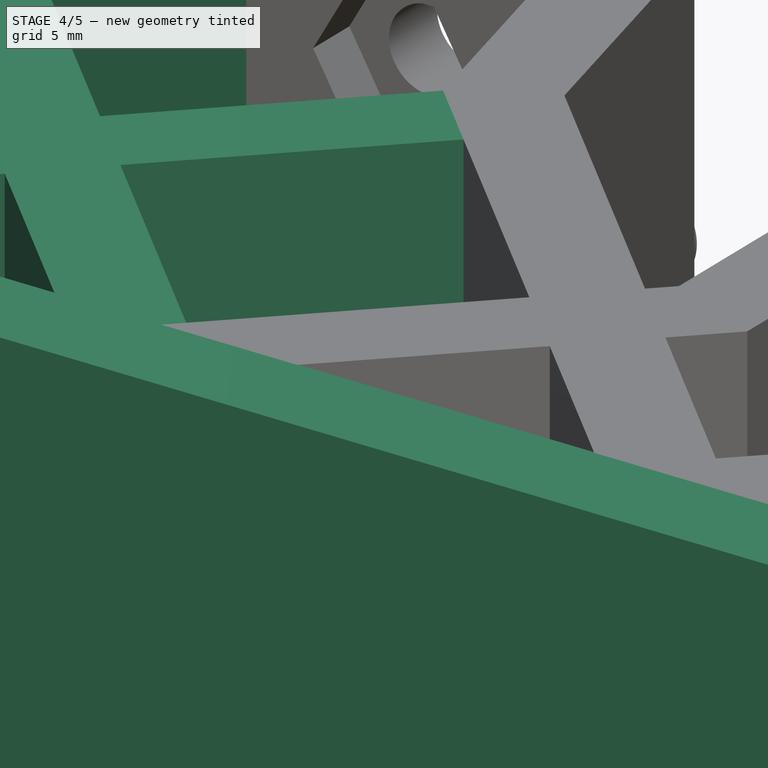
[diagram: stage 4 of 5 — iso view after this stage's code; geometry added in this stage tinted green]
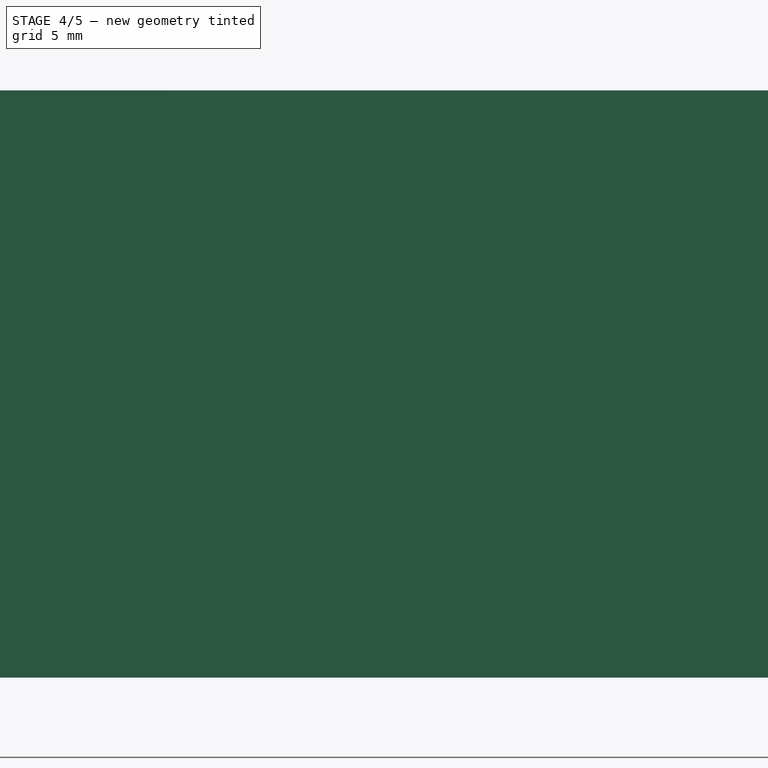
[diagram: stage 4 of 5 — front view after this stage's code; geometry added in this stage tinted green]
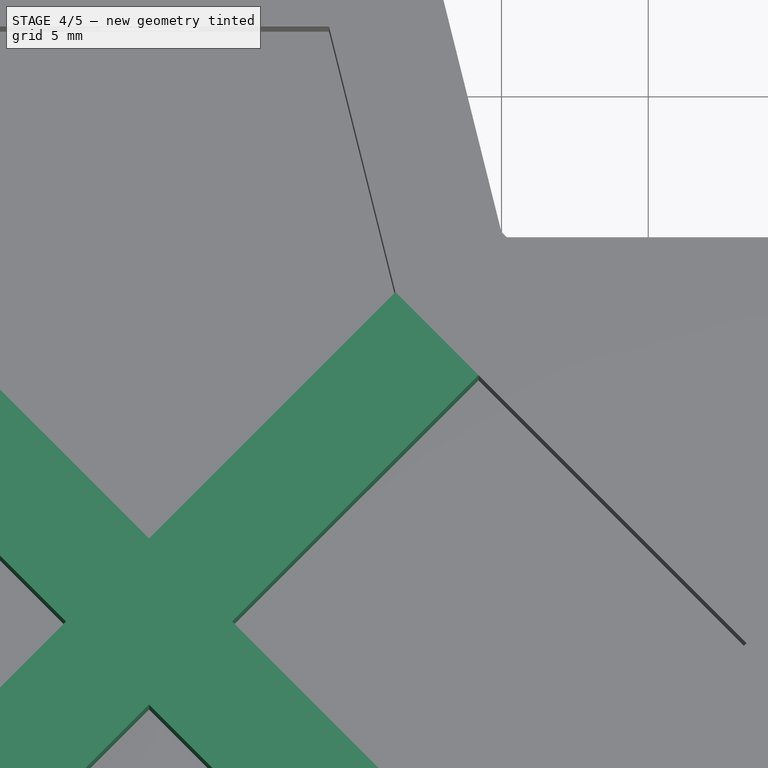
[diagram: stage 4 of 5 — top view after this stage's code; geometry added in this stage tinted green]
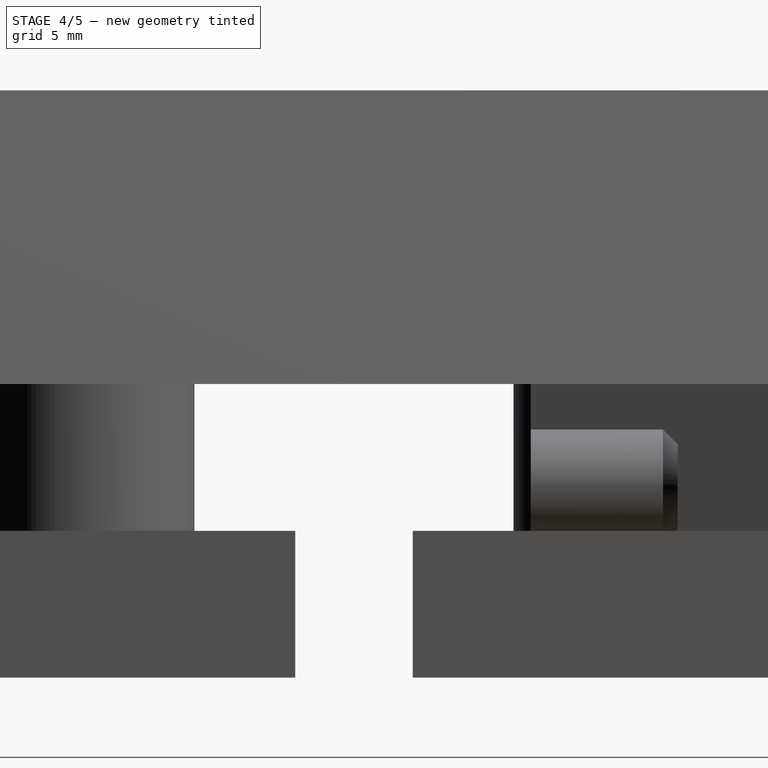
[diagram: stage 4 of 5 — right view after this stage's code; geometry added in this stage tinted green]
FEATURE [PartDesign::LinearPattern] LinearPattern004  label="top_cross_stiffener_2"
  BaseFeature = -> Mirrored002
  Direction = -> Sketch011 [H_Axis]
  Length = 66
  Occurrences = 2
  Originals = -> [Pad009]
  Reversed = true
FEATURE [Sketcher::SketchObject] Sketch012  label="top_extra_stiffener_sk"
  ExternalGeometry = -> [LinearPattern004]
  FullyConstrained = true
  MapMode = 5
  Placement = pos=(0,0,5) rot=(0,0,1;0rad)
  Support = -> [LinearPattern004]
  sketch-geometry (5):
    g0: LineSegment StartX=24.6119 StartY=-2.045 StartZ=0 EndX=44.955 EndY=-22.3881 EndZ=0
    g1: LineSegment StartX=21.7834 StartY=-4.87343 StartZ=0 EndX=39.91 EndY=-23 EndZ=0
    g2: LineSegment StartX=21.7834 StartY=-4.87343 StartZ=0 EndX=24.6119 EndY=-2.045 EndZ=0
    g3: LineSegment StartX=39.91 StartY=-23 StartZ=0 EndX=44.3431 EndY=-23 EndZ=0
    g4: LineSegment StartX=44.955 StartY=-22.3881 StartZ=0 EndX=44.3431 EndY=-23 EndZ=0
  constraints (13):
    c: Coincident(g0,g-3)
    c: PointOnObject(g0,g-6)
    c: PointOnObject(g1,g-3)
    c: PointOnObject(g1,g-5)
    c: Perpendicular(g-3,g0)
    c: Coincident(g2,g1)
    c: Coincident(g2,g0)
    c: Coincident(g3,g1)
    c: Coincident(g3,g-6)
    c: Coincident(g4,g0)
    c: Coincident(g4,g3)
    c: Parallel(g1,g0)
    c: Distance(g2) = 4
FEATURE [PartDesign::Pad] Pad010  label="top_extra_stiffener"
  BaseFeature = -> LinearPattern004
  Direction = (1,1,1)
  Length = 10
  Length2 = 100
  Profile = -> Sketch012
  Type = 3
  UpToFace = -> LinearPattern004 [Face26]
FEATURE [PartDesign::Mirrored] Mirrored003  label="top_extra_stiffener_1"
  BaseFeature = -> Pad010
  MirrorPlane = -> DatumPlane
  Originals = -> [Pad010]
FEATURE [Sketcher::SketchObject] Sketch013  label="top_extra_stiffener_2_sk"
  ExternalGeometry = -> [Mirrored003]
  FullyConstrained = true
  MapMode = 5
  Placement = pos=(0,0,5) rot=(0,0,1;0rad)
  Support = -> [Mirrored003]
  sketch-geometry (4):
    g0: LineSegment StartX=-9 StartY=-5 StartZ=0 EndX=-9 EndY=-7.15795 EndZ=0
    g1: LineSegment StartX=-9 StartY=-5 StartZ=0 EndX=-5 EndY=-5 EndZ=0
    g2: LineSegment StartX=-5 StartY=-5 StartZ=0 EndX=-5 EndY=-11.158 EndZ=0
    g3: LineSegment StartX=-5 StartY=-11.158 StartZ=0 EndX=-9 EndY=-7.15795 EndZ=0
  constraints (11):
    c: Coincident(g0,g-3)
    c: PointOnObject(g0,g-4)
    c: Vertical(g0)
    c: Coincident(g1,g0)
    c: PointOnObject(g1,g-3)
    c: Coincident(g2,g1)
    c: PointOnObject(g2,g-4)
    c: Vertical(g2)
    c: Coincident(g3,g2)
    c: Coincident(g3,g0)
    c: DistanceX(g1,g1) = 4
FEATURE [PartDesign::Pad] Pad011  label="top_extra_stiffener_2"
  BaseFeature = -> Mirrored003
  Direction = (1,1,1)
  Length = 10
  Length2 = 100
  Profile = -> Sketch013
  Reversed = true
  Type = 3
  UpToFace = -> Mirrored003 [Face26]
FEATURE [Sketcher::SketchObject] Sketch014  label="back_wall_sk"
  ExternalGeometry = -> [Pad011]
  FullyConstrained = true
  MapMode = 5
  Support = -> [XY_Plane]
  sketch-geometry (4):
    g0: LineSegment StartX=-29 StartY=-23 StartZ=0 EndX=112.059 EndY=-22.9408 EndZ=0
    g1: LineSegment StartX=112.059 StartY=-22.9408 StartZ=0 EndX=108.002 EndY=-26.9983 EndZ=0
    g2: LineSegment StartX=-29 StartY=-23 StartZ=0 EndX=-25.0017 EndY=-26.9983 EndZ=0
    g3: LineSegment StartX=-25.0017 StartY=-26.9983 StartZ=0 EndX=108.002 EndY=-26.9983 EndZ=0
  constraints (10):
    c: Coincident(g0,g-3)
    c: Coincident(g0,g-4)
    c: Coincident(g1,g0)
    c: Coincident(g2,g0)
    c: PointOnObject(g2,g-3)
    c: PointOnObject(g1,g-4)
    c: Coincident(g3,g2)
    c: Coincident(g3,g1)
    c: Horizontal(g3)
    c: Distance(g2,g0) = 4
FEATURE [PartDesign::Pad] Pad012  label="back_wall"
  BaseFeature = -> Pad011
  Direction = (1,1,1)
  Length = 15
  Length2 = 5
  Profile = -> Sketch014
  Type = 4
FEATURE [PartDesign::Pocket] Pocket001  label="trim_extra_stiffener"
  BaseFeature = -> Pad012
  Length = 10
  Length2 = 100
  Profile = -> Pad012 [Face155,Face297]
  Type = 0
FEATURE [PartDesign::Fillet] Fillet  label="slant_stiffener_tip_fillet"
  Base = -> Pocket001 [Edge309,Edge505,Edge827,Edge776]
  BaseFeature = -> Pocket001
  Radius = 2
  SupportTransform = false
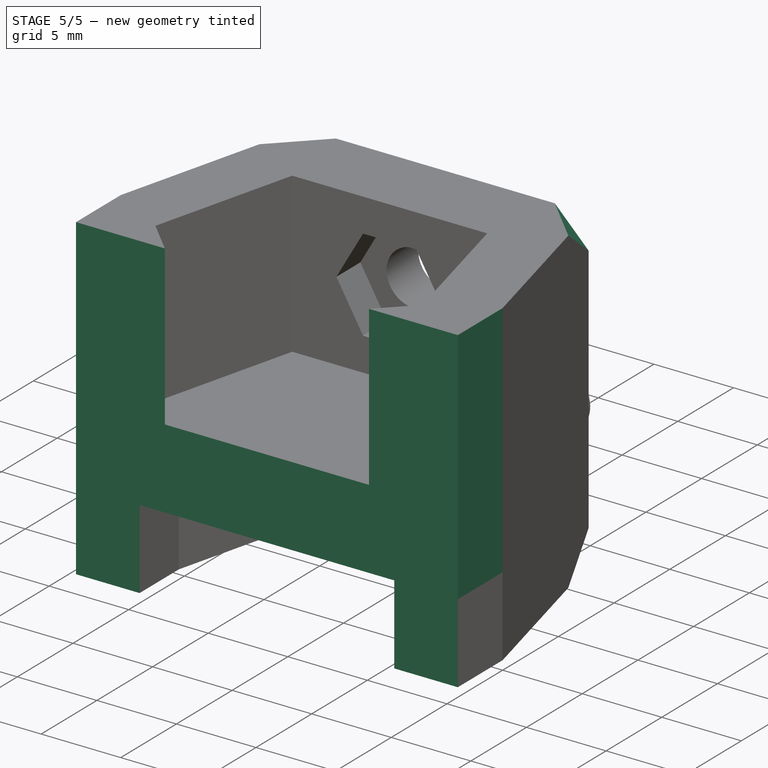
[diagram: stage 5 of 5 — iso view after this stage's code; geometry added in this stage tinted green]
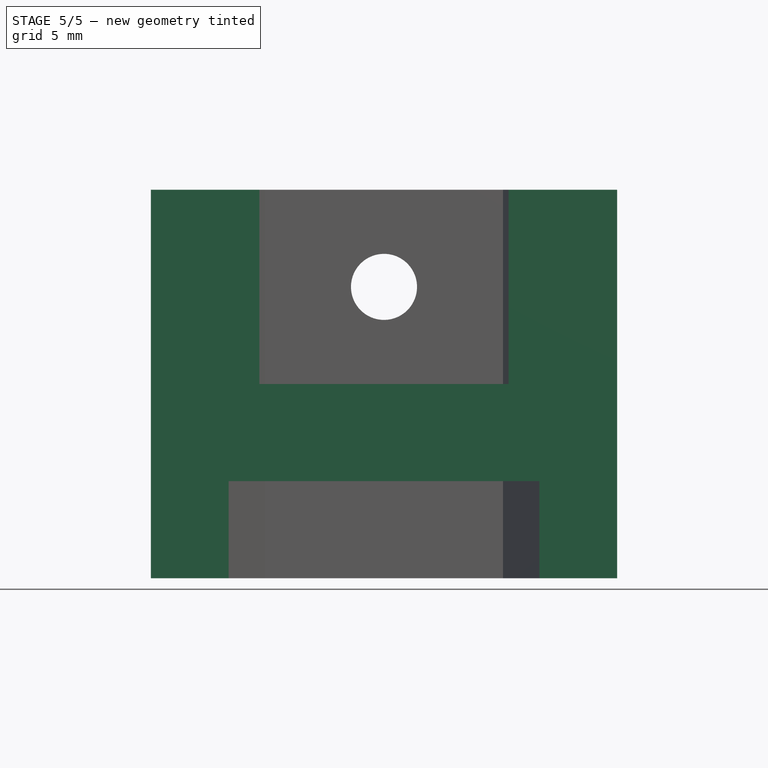
[diagram: stage 5 of 5 — front view after this stage's code; geometry added in this stage tinted green]
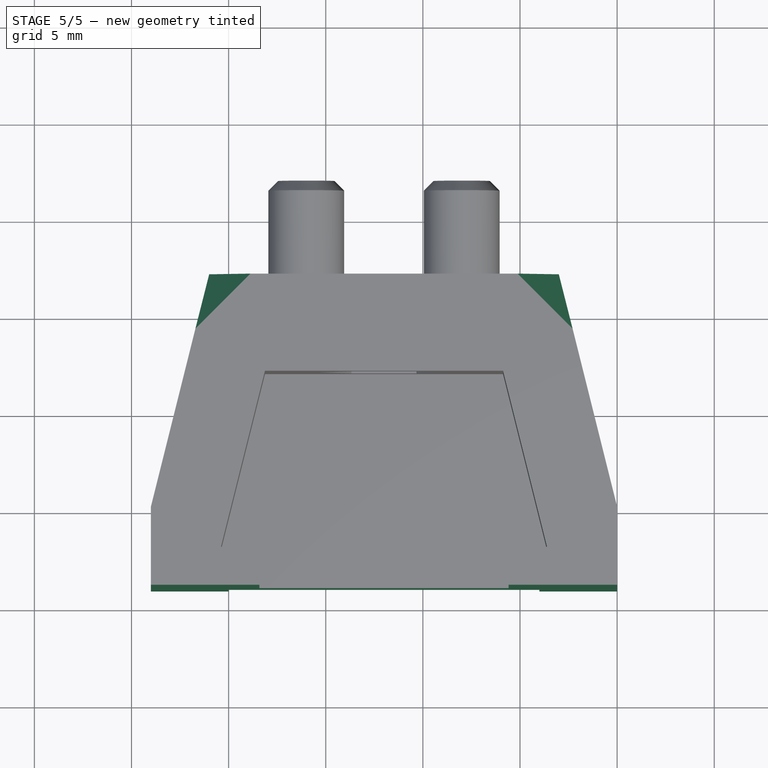
[diagram: stage 5 of 5 — top view after this stage's code; geometry added in this stage tinted green]
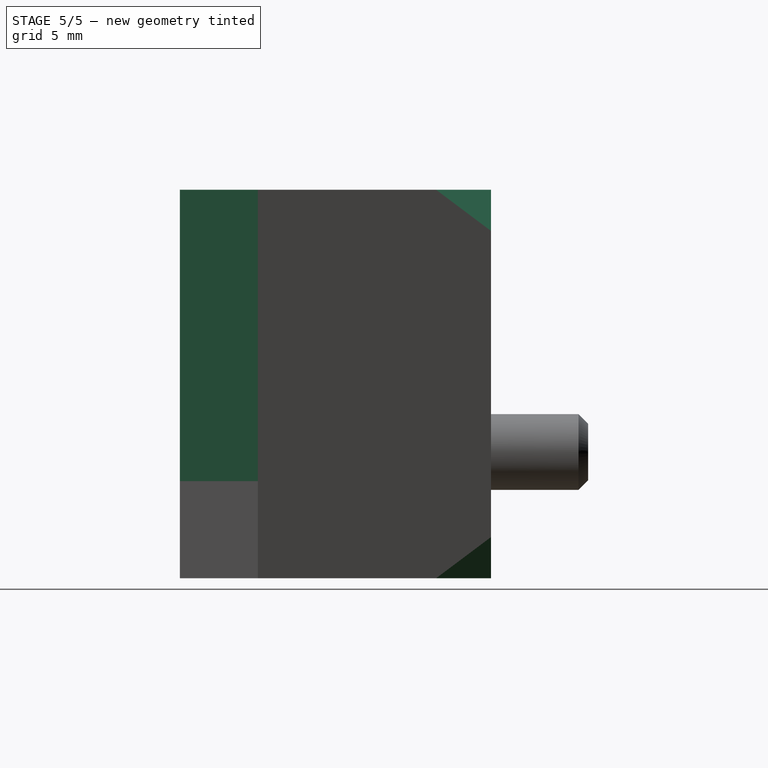
[diagram: stage 5 of 5 — right view after this stage's code; geometry added in this stage tinted green]
FEATURE [PartDesign::Chamfer] Chamfer001  label="base_tip_chamfer"
  Angle = 45
  Base = -> Fillet [Edge726,Edge42]
  BaseFeature = -> Fillet
  ChamferType = 0
  FlipDirection = false
  Size = 3
  Size2 = 1
  SupportTransform = false
FEATURE [PartDesign::Plane] DatumPlane002  label="corner_chamfer_datum_plane"
  Length = 145.488
  MapMode = 7
  Placement = pos=(59.4645,-68.4645,15) rot=(0.862856,-0.357407,-0.357407;1.71777rad)
  ResizeMode = 0
  Support = -> [Chamfer001]
  Width = 66.0873
FEATURE [Sketcher::SketchObject] Sketch015  label="corner_chamfer_sk"
  ExternalGeometry = -> [Chamfer001]
  FullyConstrained = true
  MapMode = 5
  Placement = pos=(59.4645,-68.4645,15) rot=(0.862856,-0.357407,-0.357407;1.71777rad)
  Support = -> [DatumPlane002]
  expr: Constraints[7] = 1.5 * sqrt(2)
  sketch-geometry (3):
    g0: LineSegment StartX=-96.8234 StartY=-2.66e-14 StartZ=0 EndX=-95.3234 EndY=0 EndZ=0
    g1: LineSegment StartX=-95.3234 StartY=0 StartZ=0 EndX=-96.8234 EndY=-2.12132 EndZ=0
    g2: LineSegment StartX=-96.8234 StartY=-2.12132 StartZ=0 EndX=-96.8234 EndY=-2.66e-14 EndZ=0
  constraints (8):
    c: Coincident(g0,g-3)
    c: PointOnObject(g0,g-1)
    c: Coincident(g1,g0)
    c: PointOnObject(g1,g-3)
    c: Coincident(g2,g1)
    c: Coincident(g2,g0)
    c: Distance(g0) = 1.5
    c: Distance(g2) = 2.12132
FEATURE [PartDesign::Pocket] Pocket002  label="corner_chamfer"
  BaseFeature = -> Chamfer001
  Length = 2
  Length2 = 3
  Profile = -> Sketch015
  Type = 4
FEATURE [PartDesign::Plane] DatumPlane003  label="connector_datum_plane_1"
  Length = 60
  MapMode = 45
  Placement = pos=(0,0,15) rot=(0.57735,0.57735,0.57735;2.0944rad)
  ResizeMode = 0
  Support = -> [Pad004]
  Width = 60
FEATURE [PartDesign::Plane] DatumPlane004  label="connector_datum_plane_4"
  Length = 60
  MapMode = 45
  Placement = pos=(99,12,15) rot=(0.57735,0.57735,0.57735;2.0944rad)
  ResizeMode = 0
  Support = -> [Pad004]
  Width = 60
FEATURE [PartDesign::Mirrored] Mirrored005
  MirrorPlane = -> Pocket002 [Face1]
FEATURE [PartDesign::LinearPattern] LinearPattern006
  Direction = -> DatumLine
  Length = 35.1141
  Occurrences = 2
  Reversed = true
  expr: Length = sqrt(33 ^ 2 + 12 ^ 2)
FEATURE [PartDesign::LinearPattern] LinearPattern005
  Direction = -> X_Axis
  Length = 66
  Occurrences = 2
FEATURE [PartDesign::Mirrored] Mirrored006
  MirrorPlane = -> YZ_Plane
FEATURE [PartDesign::MultiTransform] MultiTransform001  label="quad_corner_chamfer"
  BaseFeature = -> Pocket002
  Originals = -> [Pocket002]
  Transformations = -> [Mirrored005,Mirrored006,LinearPattern005,LinearPattern006]
FEATURE [Sketcher::SketchObject] Sketch016  label="corner_filling_sk"
  ExternalGeometry = -> [MultiTransform001]
  FullyConstrained = true
  MapMode = 5
  Placement = pos=(0,3.3e-15,15) rot=(0,0,1;0rad)
  Support = -> [MultiTransform001]
  sketch-geometry (4):
    g0: LineSegment StartX=105.879 StartY=12 StartZ=0 EndX=108 EndY=12 EndZ=0
    g1: LineSegment StartX=108 StartY=12 StartZ=0 EndX=110.121 EndY=9.87868 EndZ=0
    g2: LineSegment StartX=110.121 StartY=9.87868 StartZ=0 EndX=109.061 EndY=8.81802 EndZ=0
    g3: LineSegment StartX=109.061 StartY=8.81802 StartZ=0 EndX=105.879 EndY=12 EndZ=0
  constraints (8):
    c: Coincident(g0,g-4)
    c: Coincident(g0,g-3)
    c: Coincident(g1,g0)
    c: Coincident(g1,g-5)
    c: Coincident(g2,g1)
    c: Coincident(g2,g-5)
    c: Coincident(g3,g2)
    c: Coincident(g3,g0)
FEATURE [PartDesign::Pad] Pad013  label="corner_filling"
  BaseFeature = -> MultiTransform001
  Direction = (1,1,1)
  Length = 2.5
  Length2 = 100
  Profile = -> Sketch016
  Reversed = true
  Type = 0
FEATURE [PartDesign::Mirrored] Mirrored007  label="dual_corner_filling"
  BaseFeature = -> Pad013
  MirrorPlane = -> Pad013 [Face175]
  Originals = -> [Pad013]
FEATURE [PartDesign::Fillet] Fillet001  label="back_stiffener_tip_fillet"
  Base = -> Mirrored007 [Edge826,Edge822,Edge48,Edge57]
  BaseFeature = -> Mirrored007
  Radius = 1
  SupportTransform = false
FEATURE [Sketcher::SketchObject] Sketch017  label="trimmer_sk"
  ExternalGeometry = -> [Fillet001]
  FullyConstrained = true
  MapMode = 5
  Support = -> [XY_Plane]
  sketch-geometry (8):
    g0: LineSegment StartX=21 StartY=20.9803 StartZ=0 EndX=-49 EndY=20.9803 EndZ=0
    g1: LineSegment StartX=21 StartY=-4.01974 StartZ=0 EndX=21 EndY=20.9803 EndZ=0
    g2: LineSegment StartX=45 StartY=-4.01974 StartZ=0 EndX=45 EndY=20.9803 EndZ=0
    g3: LineSegment StartX=45 StartY=20.9803 StartZ=0 EndX=130 EndY=20.9803 EndZ=0
    g4: LineSegment StartX=130 StartY=20.9803 StartZ=0 EndX=130 EndY=-29.0197 EndZ=0
    g5: LineSegment StartX=130 StartY=-29.0197 StartZ=0 EndX=-49 EndY=-29.0197 EndZ=0
    g6: LineSegment StartX=-49 StartY=-29.0197 StartZ=0 EndX=-49 EndY=20.9803 EndZ=0
    g7: LineSegment StartX=21 StartY=-4.01974 StartZ=0 EndX=45 EndY=-4.01974 EndZ=0
  constraints (22):
    c: Coincident(g1,g-4)
    c: Coincident(g1,g0)
    c: Vertical(g1)
    c: Coincident(g2,g-5)
    c: Vertical(g2)
    c: Coincident(g3,g2)
    c: Horizontal(g3)
    c: Coincident(g4,g3)
    c: Vertical(g4)
    c: Coincident(g5,g4)
    c: Horizontal(g5)
    c: Coincident(g6,g5)
    c: Coincident(g6,g0)
    c: Vertical(g6)
    c: Coincident(g7,g1)
    c: Coincident(g7,g2)
    c: Horizontal(g0,g2)
    c: DistanceY(g1,g1) = 25
    c: Horizontal(g0)
    c: DistanceX(g0,g0) = 70
    c: DistanceX(g3,g3) = 85
    c: DistanceY(g6,g6) = 50
FEATURE [PartDesign::Pocket] Pocket003
  BaseFeature = -> Fillet001
  Length = 20
  Length2 = 20
  Profile = -> Sketch017
  Type = 4
FEATURE [PartDesign::Body] Body
  Group = -> [Sketch,Pad,DatumLine,Sketch001,Pad001,Sketch002,Hole,Sketch003,Pocket,Sketch004,Pad002,Chamfer,MultiTransform,LinearPattern,LinearPattern001,Sketch005,Pad003,Hole001,Sketch006,Pad004,DatumPlane003,DatumPlane,DatumPlane001,DatumPlane004,Sketch007,Pad005,Mirrored,LinearPattern002,Sketch008,Pad006,Mirrored001,LinearPattern003,Sketch009,Pad007,Sketch010,Pad008,Sketch011,Pad009,Mirrored002,+25 more]
  Origin = -> Origin
  Tip = -> Pocket003
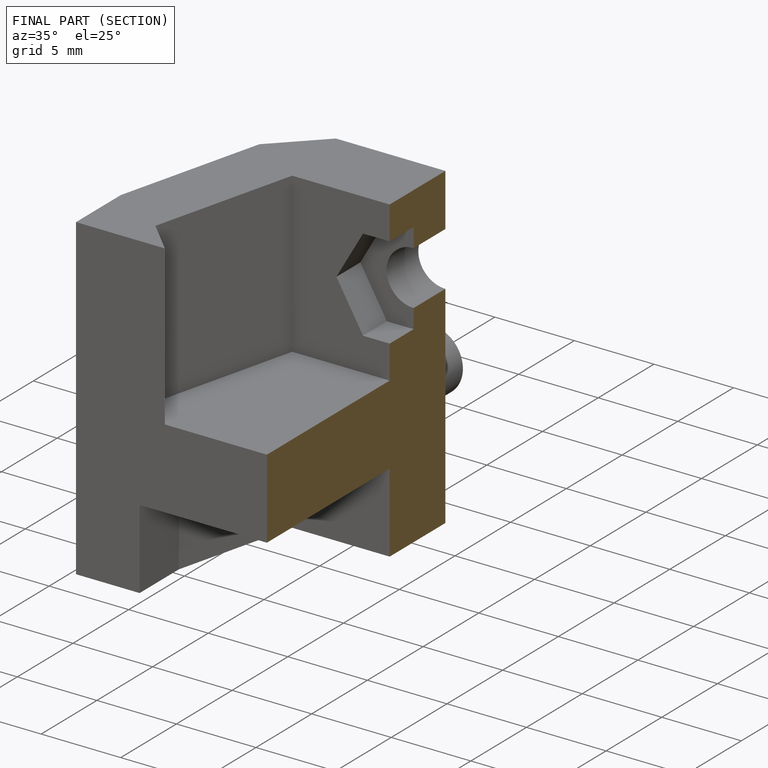
[diagram: finished part — half-section view (interior)]
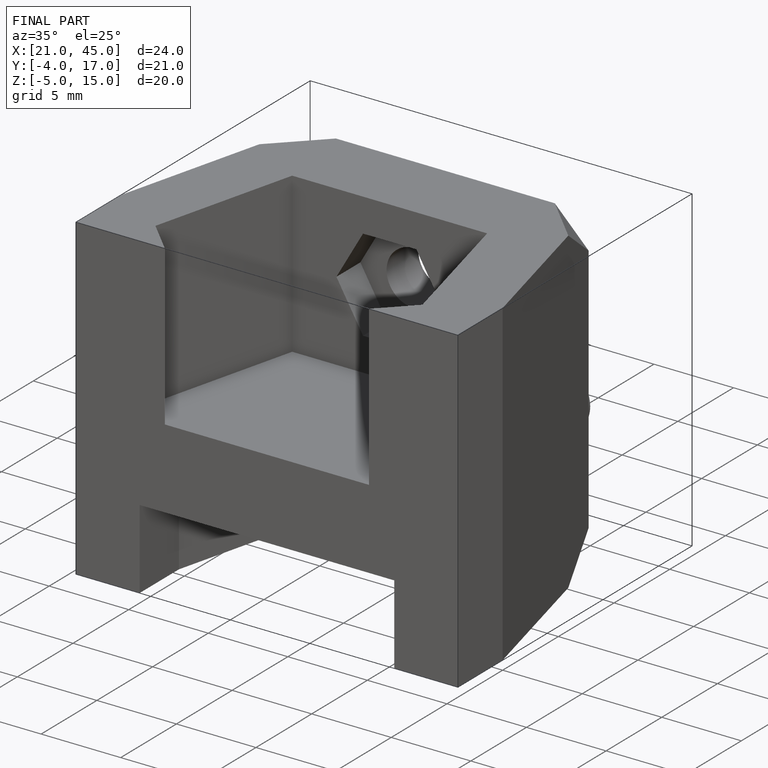
[diagram: finished part — iso view with bounding-box wireframe]
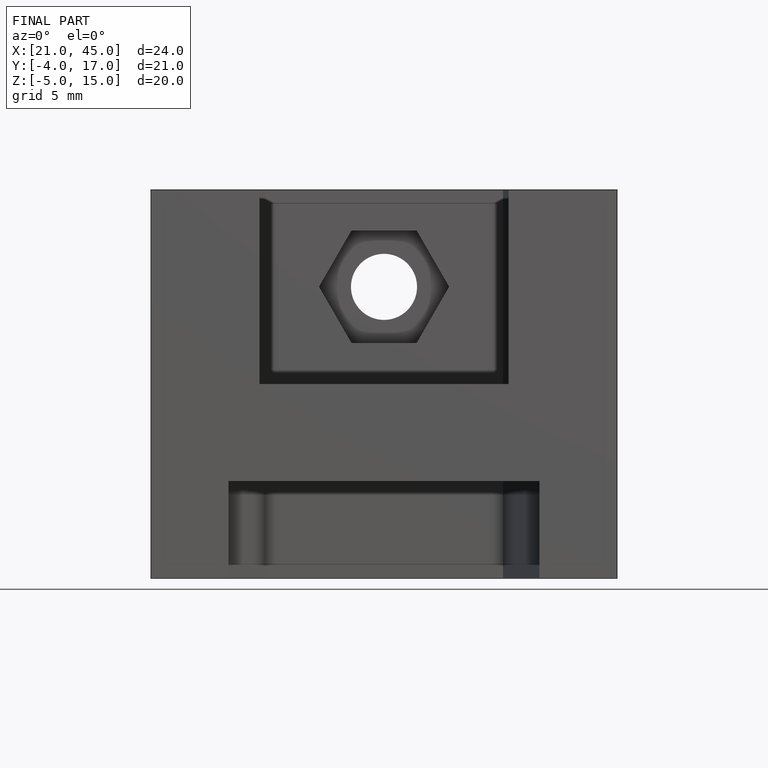
[diagram: finished part — front view with bounding-box wireframe]
